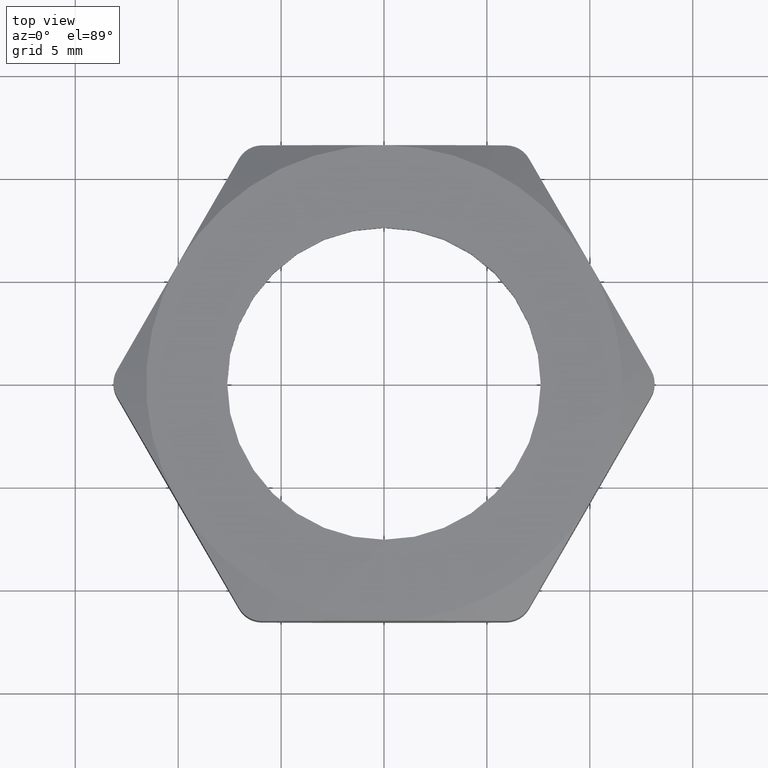
[diagram: clean part render]
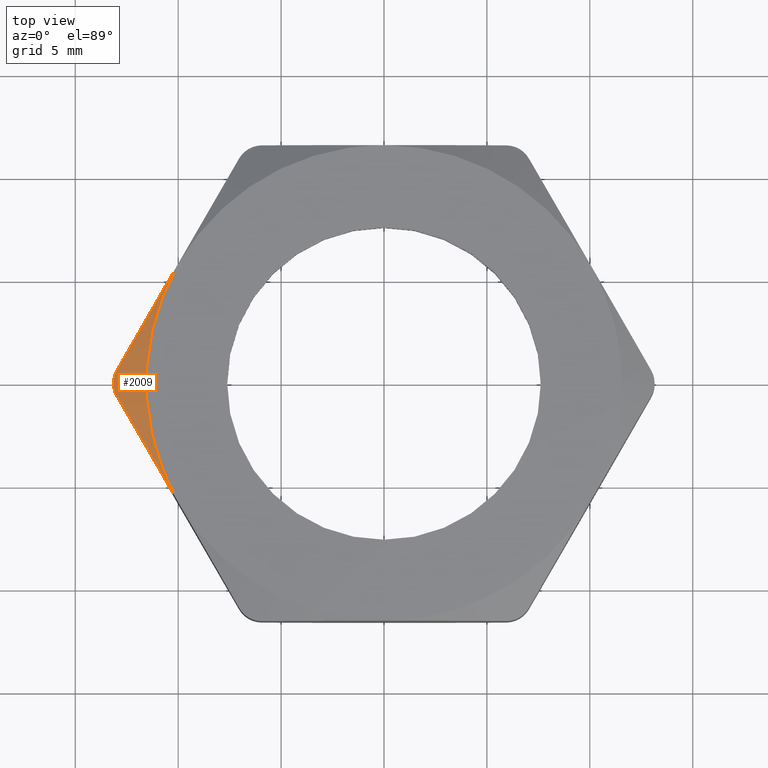
[diagram: same view with one face highlighted and labeled with its STEP entity id]
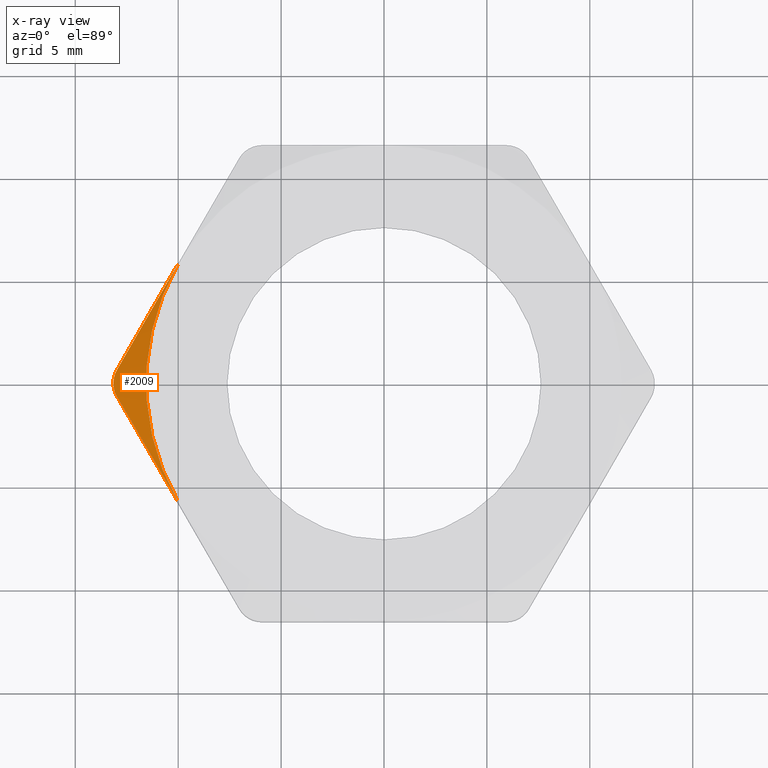
[diagram: x-ray of the same camera — body ghosted, the highlighted face saturated]
A machine part, top view. The second image highlights one B-rep face of the part: STEP entity #2009.
The next image is the same camera in x-ray: the body ghosted, the highlighted face saturated — about 0% of this face is hidden behind the body in this view.
In plain terms, the highlighted conical surface has half-angle 60 deg.
Its self-contained STEP definition (entity closure, byte-faithful):
#209 = CARTESIAN_POINT ( 'NONE',  ( -0.5109549882328114900, -0.02500000000001279700, 0.2073414762142364300 ) ) ;
#210 = CARTESIAN_POINT ( 'NONE',  ( -0.5131034996981048700, -0.02127866898148425200, 0.2062075114016308500 ) ) ;
#211 = CARTESIAN_POINT ( 'NONE',  ( -0.5147946611318553500, -0.01722272544729019200, 0.2053212469042511000 ) ) ;
#212 = CARTESIAN_POINT ( 'NONE',  ( -0.5170593666779571600, -0.008830213479940365200, 0.2041364365156503600 ) ) ;
#213 = CARTESIAN_POINT ( 'NONE',  ( -0.5176537180435948300, -0.004391119812516690800, 0.2038268590217996700 ) ) ;
#214 = CARTESIAN_POINT ( 'NONE',  ( -0.5176537180437229500, -1.435391129449905500E-014, 0.2038268590217328400 ) ) ;
#217 = CARTESIAN_POINT ( 'NONE',  ( -0.5109549882328114900, -0.02500000000001279700, 0.2073414762142364300 ) ) ;
#218 = CARTESIAN_POINT ( 'NONE',  ( -0.5176537180437229500, -1.435391129449905500E-014, 0.2038268590217328400 ) ) ;
#219 = B_SPLINE_CURVE_WITH_KNOTS ( 'NONE', 3,
 ( #214, #213, #212, #211, #210, #209 ),
 .UNSPECIFIED., .F., .F.,
 ( 4, 2, 4 ),
 ( 0.0006702464828151322700, 0.001004272962303261700, 0.001338299441791391100 ),
 .UNSPECIFIED. ) ;
#578 = DIRECTION ( 'NONE',  ( 1.000000000000000000, 0.0000000000000000000, 0.0000000000000000000 ) ) ;
#579 = DIRECTION ( 'NONE',  ( 0.0000000000000000000, 0.0000000000000000000, 1.000000000000000000 ) ) ;
#580 = CARTESIAN_POINT ( 'NONE',  ( 0.0000000000000000000, 0.0000000000000000000, 0.2399999999999999900 ) ) ;
#581 = AXIS2_PLACEMENT_3D ( 'NONE', #580, #579, #578 ) ;
#582 = CIRCLE ( 'NONE', #581, 0.4550000000000000200 ) ;
#723 = CARTESIAN_POINT ( 'NONE',  ( -0.5176537180437229500, -1.435391129449905500E-014, 0.2038268590217328400 ) ) ;
#724 = CARTESIAN_POINT ( 'NONE',  ( -0.5176537180435992800, 0.004405537869985659200, 0.2038268590217973700 ) ) ;
#725 = CARTESIAN_POINT ( 'NONE',  ( -0.5170654117564058600, 0.008817167245223472500, 0.2041332663316080800 ) ) ;
#726 = CARTESIAN_POINT ( 'NONE',  ( -0.5147740847042173700, 0.01728956215661252300, 0.2053320194025671000 ) ) ;
#727 = CARTESIAN_POINT ( 'NONE',  ( -0.5131098711565362800, 0.02126763329175905200, 0.2062041486038133600 ) ) ;
#728 = CARTESIAN_POINT ( 'NONE',  ( -0.5109549882328189300, 0.02500000000000002200, 0.2073414762142324100 ) ) ;
#740 = B_SPLINE_CURVE_WITH_KNOTS ( 'NONE', 3,
 ( #728, #727, #726, #725, #724, #723 ),
 .UNSPECIFIED., .F., .F.,
 ( 4, 2, 4 ),
 ( 3.252606517456513300E-019, 0.0003351232414075663500, 0.0006702464828151322700 ),
 .UNSPECIFIED. ) ;
#743 = CARTESIAN_POINT ( 'NONE',  ( -0.3940415587219198700, -0.2275000000000000100, 0.2399999999999999900 ) ) ;
#744 = CARTESIAN_POINT ( 'NONE',  ( -0.4139180713141779000, -0.1930728703129263300, 0.2400000000000002100 ) ) ;
#745 = CARTESIAN_POINT ( 'NONE',  ( -0.4335757174413654700, -0.1590248284634280300, 0.2369527134420846000 ) ) ;
#746 = CARTESIAN_POINT ( 'NONE',  ( -0.4725179159795663300, -0.09157496203682959100, 0.2256635415750348800 ) ) ;
#747 = CARTESIAN_POINT ( 'NONE',  ( -0.4918044299211136200, -0.05816973998918444100, 0.2174489667340724100 ) ) ;
#748 = CARTESIAN_POINT ( 'NONE',  ( -0.5109549882328114900, -0.02500000000001279700, 0.2073414762142364300 ) ) ;
#749 = B_SPLINE_CURVE_WITH_KNOTS ( 'NONE', 3,
 ( #748, #747, #746, #745, #744, #743 ),
 .UNSPECIFIED., .F., .F.,
 ( 4, 2, 4 ),
 ( 0.0007548448879267511800, 0.003753248236284075500, 0.006751651584641398700 ),
 .UNSPECIFIED. ) ;
#854 = CARTESIAN_POINT ( 'NONE',  ( -0.3940415587219196500, 0.2275000000000000600, 0.2399999999999999900 ) ) ;
#899 = CARTESIAN_POINT ( 'NONE',  ( -0.3940415587219198700, -0.2275000000000000100, 0.2399999999999999900 ) ) ;
#919 = CARTESIAN_POINT ( 'NONE',  ( -0.5109549882328189300, 0.02500000000000002200, 0.2073414762142324100 ) ) ;
#930 = CARTESIAN_POINT ( 'NONE',  ( -0.5109549882328189300, 0.02500000000000002200, 0.2073414762142324100 ) ) ;
#931 = CARTESIAN_POINT ( 'NONE',  ( -0.4918480997078177900, 0.05809410169985684100, 0.2174259182177875900 ) ) ;
#932 = CARTESIAN_POINT ( 'NONE',  ( -0.4725861320703436700, 0.09145680830170935200, 0.2256379058401431200 ) ) ;
#933 = CARTESIAN_POINT ( 'NONE',  ( -0.4433750602790700300, 0.1420518687877374800, 0.2341148424956999400 ) ) ;
#934 = CARTESIAN_POINT ( 'NONE',  ( -0.4335849737503692500, 0.1590087960659426200, 0.2362998002525580100 ) ) ;
#935 = CARTESIAN_POINT ( 'NONE',  ( -0.4138866949049832000, 0.1931272158478105600, 0.2392436842612516400 ) ) ;
#936 = CARTESIAN_POINT ( 'NONE',  ( -0.4039398436940419000, 0.2103556675204887300, 0.2400000000000002700 ) ) ;
#937 = CARTESIAN_POINT ( 'NONE',  ( -0.3940415587219196500, 0.2275000000000000600, 0.2399999999999999900 ) ) ;
#939 = B_SPLINE_CURVE_WITH_KNOTS ( 'NONE', 3,
 ( #937, #936, #935, #934, #933, #932, #931, #930 ),
 .UNSPECIFIED., .F., .F.,
 ( 4, 2, 2, 4 ),
 ( 0.006751651584641398700, 0.008244823521400894800, 0.009737995458160390900, 0.01272433933167938300 ),
 .UNSPECIFIED. ) ;
#999 = DIRECTION ( 'NONE',  ( 1.000000000000000000, 0.0000000000000000000, 0.0000000000000000000 ) ) ;
#1000 = DIRECTION ( 'NONE',  ( 0.0000000000000000000, 0.0000000000000000000, -1.000000000000000000 ) ) ;
#1001 = CARTESIAN_POINT ( 'NONE',  ( 0.0000000000000000000, 0.0000000000000000000, 0.2399999999999999900 ) ) ;
#1002 = AXIS2_PLACEMENT_3D ( 'NONE', #1001, #1000, #999 ) ;
#1004 = CONICAL_SURFACE ( 'NONE', #1002, 0.4550000000000000200, 1.047197551196600100 ) ;
#1005 = FACE_OUTER_BOUND ( 'NONE', #1870, .T. ) ;
#1579 = EDGE_CURVE ( 'NONE', #1580, #1581, #219, .T. ) ;
#1580 = VERTEX_POINT ( 'NONE', #218 ) ;
#1581 = VERTEX_POINT ( 'NONE', #217 ) ;
#1760 = EDGE_CURVE ( 'NONE', #1946, #1955, #582, .T. ) ;
#1870 = EDGE_LOOP ( 'NONE', ( #1871, #1872, #1874, #1875, #1876 ) ) ;
#1871 = ORIENTED_EDGE ( 'NONE', *, *, #1965, .T. ) ;
#1872 = ORIENTED_EDGE ( 'NONE', *, *, #1873, .T. ) ;
#1873 = EDGE_CURVE ( 'NONE', #1974, #1580, #740, .T. ) ;
#1874 = ORIENTED_EDGE ( 'NONE', *, *, #1579, .T. ) ;
#1875 = ORIENTED_EDGE ( 'NONE', *, *, #1902, .T. ) ;
#1876 = ORIENTED_EDGE ( 'NONE', *, *, #1760, .F. ) ;
#1902 = EDGE_CURVE ( 'NONE', #1581, #1955, #749, .T. ) ;
#1946 = VERTEX_POINT ( 'NONE', #854 ) ;
#1955 = VERTEX_POINT ( 'NONE', #899 ) ;
#1965 = EDGE_CURVE ( 'NONE', #1946, #1974, #939, .T. ) ;
#1974 = VERTEX_POINT ( 'NONE', #919 ) ;
#2009 = ADVANCED_FACE ( 'NONE', ( #1005 ), #1004, .T. ) ;